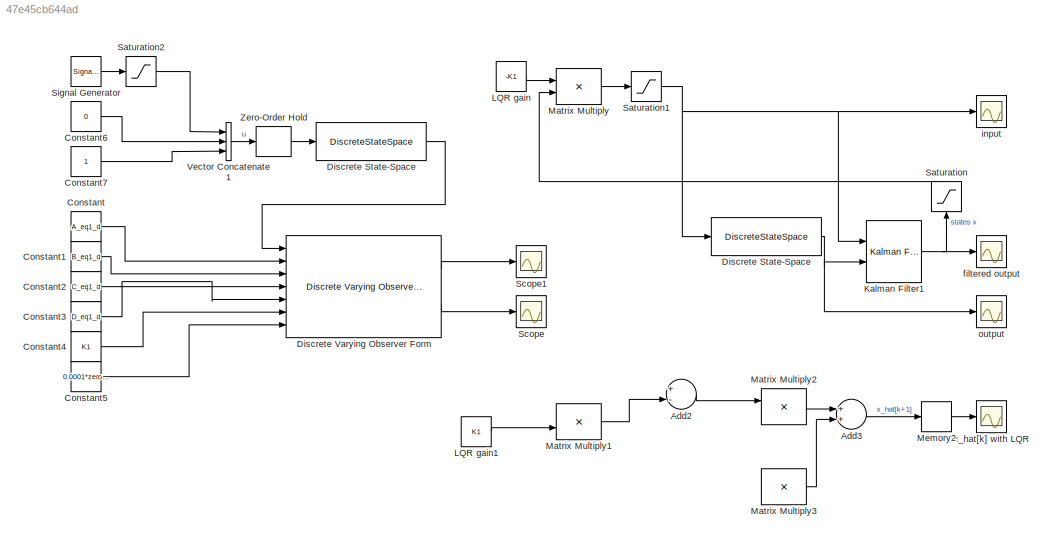
MODEL slx_47e45cb644ad
KIND model
CONFIG AbsTol = auto
CONFIG EnableMultiTasking = off
CONFIG FixedStep = auto
CONFIG InitFcn = lin_discr_model
CONFIG MaxStep = auto
CONFIG MinStep = auto
CONFIG RelTol = 1e-3
CONFIG SampleTimeConstraint = Unconstrained
CONFIG Solver = VariableStepAuto
CONFIG SolverName = VariableStepAuto
CONFIG StartTime = 0.0
CONFIG StopTime = 30
BLOCK [Sum] Add2
  Commented = on
  InputSameDT = off
  Inputs = +-
  OutDataTypeStr = Inherit: Inherit via internal rule
  Ports = [2, 1]
  SaturateOnIntegerOverflow = off
BLOCK [Sum] Add3
  Commented = on
  InputSameDT = off
  OutDataTypeStr = Inherit: Inherit via internal rule
  Ports = [2, 1]
  SaturateOnIntegerOverflow = off
BLOCK [Constant] Constant
  SampleTime = Ts
  Value = A_eq1_d
BLOCK [Constant] Constant1
  SampleTime = Ts
  Value = B_eq1_d
BLOCK [Constant] Constant2
  SampleTime = Ts
  Value = C_eq1_d
BLOCK [Constant] Constant3
  SampleTime = Ts
  Value = D_eq1_d
BLOCK [Constant] Constant4
  SampleTime = Ts
  Value = K1
BLOCK [Constant] Constant5
  SampleTime = Ts
  Value = 0.0001*zeros(4,2)
BLOCK [Constant] Constant6
  Value = 0
BLOCK [Constant] Constant7
BLOCK [DiscreteStateSpace] Discrete State-Space
  A = A_eq1_d
  B = B_eq1_d
  C = C_eq1_d
  D = D_eq1_d
  InitialCondition = [pi;0;0;0]
  SampleTime = Ts
BLOCK [DiscreteStateSpace] Discrete State-Space 
  A = A_eq1_d
  B = B_eq1_d
  C = C_eq1_d
  D = D_eq1_d
  InitialCondition = [pi;0;0;0]
  SampleTime = Ts
BLOCK [Reference] Discrete Varying Observer Form  REF=cstblocks/Linear Parameter Varying/Discrete Varying Observer Form
  Ports = [7, 2]
  SourceBlock = cstblocks/Linear Parameter Varying/Discrete Varying Observer Form
  SourceProductBaseCode = CT
  SourceProductName = Control System Toolbox
  SourceType = Discrete Varying Observer Form
BLOCK [Reference] Kalman Filter1  REF=ctrlSharedLib/Kalman Filter
  Ports = [2, 1]
  SourceBlock = ctrlSharedLib/Kalman Filter
  SourceProductBaseCode = CT
  SourceProductName = Control System Toolbox
  SourceType = ctrlKalmanFilter
BLOCK [Constant] LQR gain
  SampleTime = Ts
  Value = -K1
BLOCK [Constant] LQR gain1
  Commented = on
  SampleTime = Ts
  Value = K1
BLOCK [Product] Matrix Multiply
  InputSameDT = off
  Multiplication = Matrix(*)
  OutDataTypeStr = Inherit: Inherit via internal rule
  Ports = [2, 1]
  RndMeth = Floor
  SaturateOnIntegerOverflow = off
BLOCK [Product] Matrix Multiply1
  Commented = on
  InputSameDT = off
  Multiplication = Matrix(*)
  OutDataTypeStr = Inherit: Inherit via internal rule
  Ports = [2, 1]
  RndMeth = Floor
  SaturateOnIntegerOverflow = off
BLOCK [Product] Matrix Multiply2
  Commented = on
  InputSameDT = off
  Multiplication = Matrix(*)
  OutDataTypeStr = Inherit: Inherit via internal rule
  Ports = [2, 1]
  RndMeth = Floor
  SaturateOnIntegerOverflow = off
BLOCK [Product] Matrix Multiply3
  Commented = on
  InputSameDT = off
  Multiplication = Matrix(*)
  OutDataTypeStr = Inherit: Inherit via internal rule
  Ports = [2, 1]
  RndMeth = Floor
  SaturateOnIntegerOverflow = off
BLOCK [Memory] Memory2
  Commented = on
  InitialCondition = [pi;0;0;0]
BLOCK [Saturate] Saturation
  InputPortMap = u0
  LowerLimit = -2*pi
  Ports = [1, 1]
  UpperLimit = 2*pi
BLOCK [Saturate] Saturation1
  InputPortMap = u0
  LowerLimit = -10
  Ports = [1, 1]
  UpperLimit = 10
BLOCK [Saturate] Saturation2
  InputPortMap = u0
  LowerLimit = -1
  Ports = [1, 1]
  UpperLimit = 1
BLOCK [Scope] Scope
  Floating = off
  NumInputPorts = 1
  Ports = [1]
  ScopeSpecificationString = Simulink.scopes.TimeScopeBlockCfg('CurrentConfiguration', extmgr.ConfigurationSet(extmgr.Configuration('Core','General UI',true),extmgr.Configuration('Core','Source UI',true),extmgr.Configuration('Sources','WiredSimulink',true,'DataLoggingVariableName','ScopeData1'),extmgr.Configuration('Visuals','Time Domain',true,'SerializedDisplays',{struct('MinYLimReal','-38910848659200897470181013991510438755...<+3960ch>
BLOCK [Scope] Scope1
  Floating = off
  NumInputPorts = 1
  Ports = [1]
  ScopeSpecificationString = Simulink.scopes.TimeScopeBlockCfg('CurrentConfiguration', extmgr.ConfigurationSet(extmgr.Configuration('Core','General UI',true),extmgr.Configuration('Core','Source UI',true),extmgr.Configuration('Sources','WiredSimulink',true,'DataLoggingVariableName','ScopeData1'),extmgr.Configuration('Visuals','Time Domain',true),extmgr.Configuration('Tools','Plot Navigation',true),extmgr.Configuration('Tools',...<+40ch>
BLOCK [SignalGenerator] Signal Generator
  Amplitude = -0.3
  Ports = [0, 1]
  WaveForm = square
BLOCK [Concatenate] Vector Concatenate1
  NumInputs = 3
  Ports = [3, 1]
BLOCK [ZeroOrderHold] Zero-Order Hold
  SampleTime = Ts
BLOCK [Scope] filtered output
  Floating = off
  NumInputPorts = 1
  Ports = [1]
  ScopeSpecificationString = Simulink.scopes.TimeScopeBlockCfg('CurrentConfiguration', extmgr.ConfigurationSet(extmgr.Configuration('Core','General UI',true),extmgr.Configuration('Core','Source UI',true),extmgr.Configuration('Sources','WiredSimulink',true,'DataLoggingVariableName','ScopeData2'),extmgr.Configuration('Visuals','Time Domain',true,'SerializedDisplays',{struct('MinYLimReal','-227.49025','MaxYLimReal','208.73103','...<+1558ch>
BLOCK [Scope] input
  Floating = off
  NumInputPorts = 1
  Ports = [1]
  ScopeSpecificationString = Simulink.scopes.TimeScopeBlockCfg('CurrentConfiguration', extmgr.ConfigurationSet(extmgr.Configuration('Core','General UI',true),extmgr.Configuration('Core','Source UI',true),extmgr.Configuration('Sources','WiredSimulink',true,'DataLoggingVariableName','ScopeData1'),extmgr.Configuration('Visuals','Time Domain',true,'SerializedDisplays',{struct('MinYLimReal','-12.5','MaxYLimReal','12.5','YLabelReal...<+1386ch>
BLOCK [Scope] output
  Floating = off
  NumInputPorts = 1
  Ports = [1]
  ScopeSpecificationString = Simulink.scopes.TimeScopeBlockCfg('CurrentConfiguration', extmgr.ConfigurationSet(extmgr.Configuration('Core','General UI',true),extmgr.Configuration('Core','Source UI',true),extmgr.Configuration('Sources','WiredSimulink',true,'DataLoggingVariableName','ScopeData1'),extmgr.Configuration('Visuals','Time Domain',true,'SerializedDisplays',{struct('MinYLimReal','-6.1734','MaxYLimReal','6.95841','YLabe...<+1546ch>
BLOCK [Scope] x_hat[k] with LQR
  Commented = on
  Floating = off
  NumInputPorts = 1
  Ports = [1]
  ScopeSpecificationString = Simulink.scopes.TimeScopeBlockCfg('CurrentConfiguration', extmgr.ConfigurationSet(extmgr.Configuration('Core','General UI',true),extmgr.Configuration('Core','Source UI',true),extmgr.Configuration('Sources','WiredSimulink',true,'DataLoggingVariableName','ScopeData4'),extmgr.Configuration('Visuals','Time Domain',true,'SerializedDisplays',{struct('MinYLimReal','-551983435.86408','MaxYLimReal','124845...<+1607ch>
LINE Add2:1 -> Matrix Multiply2:1
LINE Add3:1 -> Memory2:1
LINE Constant1:1 -> Discrete Varying Observer Form:3
LINE Constant2:1 -> Discrete Varying Observer Form:4
LINE Constant3:1 -> Discrete Varying Observer Form:5
LINE Constant4:1 -> Discrete Varying Observer Form:6
LINE Constant5:1 -> Discrete Varying Observer Form:7
LINE Constant6:1 -> Vector Concatenate1:2
LINE Constant7:1 -> Vector Concatenate1:3
LINE Constant:1 -> Discrete Varying Observer Form:2
LINE Discrete State-Space :1 -> Discrete Varying Observer Form:1
NET Discrete State-Space:1 -> Kalman Filter1:2, output:1
LINE Discrete Varying Observer Form:1 -> Scope1:1
LINE Discrete Varying Observer Form:2 -> Scope:1
NET Kalman Filter1:1 -> Saturation:1, filtered output:1
LINE LQR gain1:1 -> Matrix Multiply1:2
LINE LQR gain:1 -> Matrix Multiply:1
LINE Matrix Multiply1:1 -> Add2:2
LINE Matrix Multiply2:1 -> Add3:1
LINE Matrix Multiply3:1 -> Add3:2
LINE Matrix Multiply:1 -> Saturation1:1
LINE Memory2:1 -> x_hat[k] with LQR:1
NET Saturation1:1 -> Discrete State-Space:1, Kalman Filter1:1, input:1
LINE Saturation2:1 -> Vector Concatenate1:1
LINE Saturation:1 -> Matrix Multiply:2
LINE Signal Generator:1 -> Saturation2:1
LINE Vector Concatenate1:1 -> Zero-Order Hold:1
LINE Zero-Order Hold:1 -> Discrete State-Space :1
note: NET lines group one-source signal fan-out (src -> all destinations, sorted); 1:1 wires keep LINE
